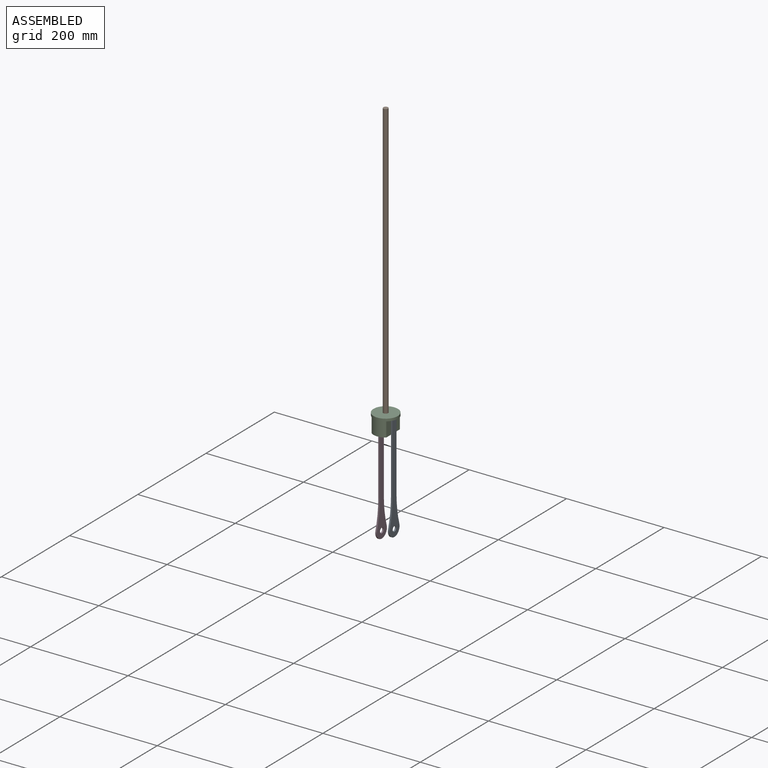
[diagram: assembled view]
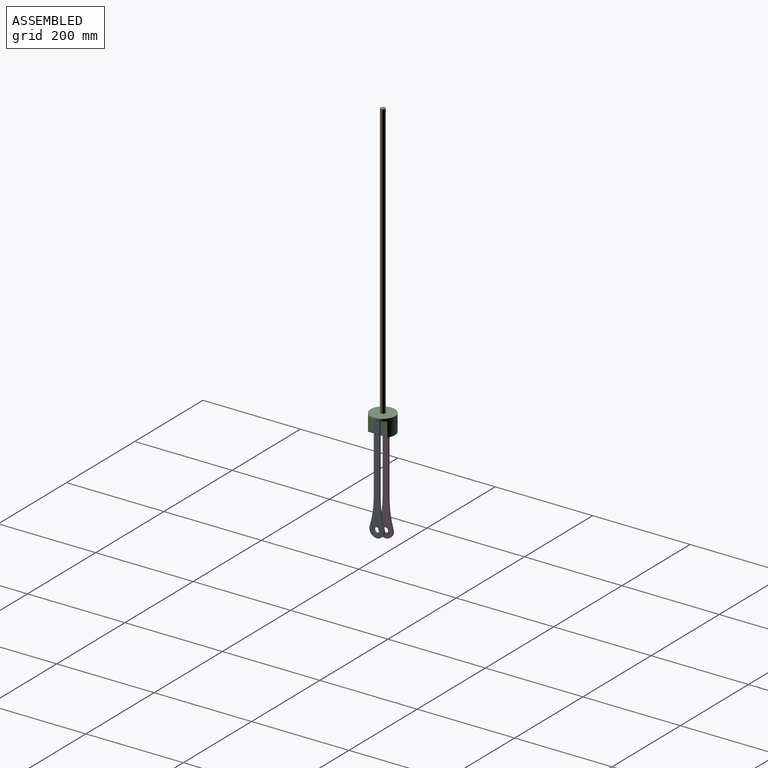
[diagram: assembled view, second angle]
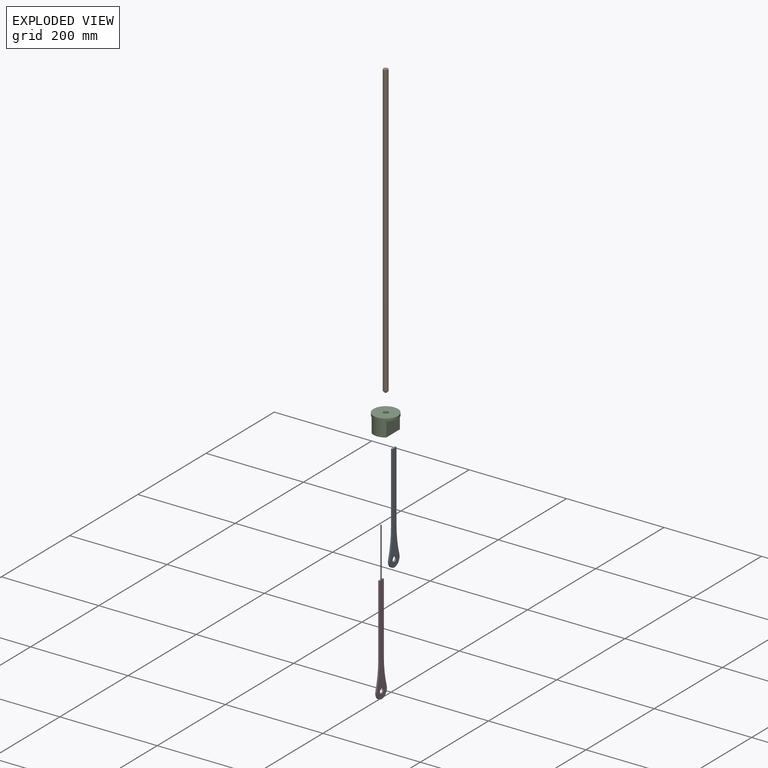
[diagram: exploded view]
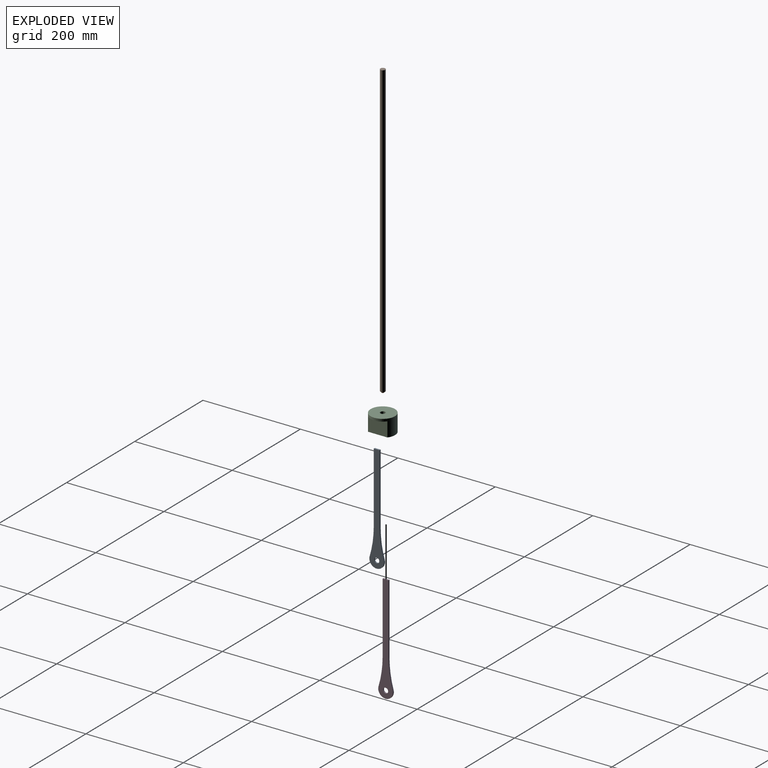
[diagram: exploded view, second angle]
ASSEMBLY  parts=4 mates=6
PART A: 9 faces, bbox 3x30x221.3 mm
  f0: plane 12x3mm, normal (0,0,1), area 36mm2, adj f1,f6,f7,f8
  f1: plane 144.7x3mm, normal (0,-1,0), area 434.1mm2, adj f0,f2,f7,f8
  f2: cylinder r=200mm len=57.26mm, axis (-1,0,0), area 174.2mm2, adj f1,f3,f7,f8
  f3: cylinder r=15mm len=30mm, axis (-1,0,0), area 167.5mm2, adj f2,f4,f7,f8
  f4: cylinder r=200mm len=57.26mm, axis (-1,0,0), area 174.2mm2, adj f3,f6,f7,f8
  f5: cylinder r=5.25mm len=10.5mm, axis (-1,0,0), area 99mm2, adj f7,f8
  f6: plane 144.7x3mm, normal (0,1,0), area 434.1mm2, adj f0,f4,f7,f8
  f7: plane 221.25x30mm, normal (1,0,0), area 3134.3mm2, adj f0,f1,f2,f3,f4,f5,f6
  f8: plane 221.25x30mm, normal (-1,0,0), area 3134.3mm2, adj f0,f1,f2,f3,f4,f5,f6
PART B: 4 faces, bbox 10x10x600 mm
  f0: cylinder r=5mm len=597mm, axis (0,0,-1), area 18755.3mm2, adj f1,f3
  f1: plane 10x10mm, normal (0,0,1), area 78.5mm2, adj f0
  f2: plane 4x4mm, normal (0,0,-1), area 12.6mm2, adj f3
  f3: cone r=5mm half-angle=45deg, axis (0,0,1), area 93.3mm2, adj f0,f2
PART C: 8 faces, bbox 50x50x35 mm
  f0: plane 50x30mm, normal (0,0,-1), area 1325.8mm2, adj f1,f2,f4,f6
  f1: cylinder r=5mm len=35mm, axis (0,0,-1), area 1099.6mm2, adj f0,f3
  f2: cylinder r=25mm len=50mm, axis (0,0,-1), area 2715.9mm2, adj f0,f3,f4,f5,f6,f7
  f3: plane 50x50mm, normal (0,0,1), area 1885mm2, adj f1,f2
  f4: plane 40x30mm, normal (1,0,0), area 1200mm2, adj f0,f2,f5
  f5: plane 40x10mm, normal (0,0,-1), area 279.6mm2, adj f2,f4
  f6: plane 40x30mm, normal (-1,0,0), area 1200mm2, adj f0,f2,f7
  f7: plane 40x10mm, normal (0,0,-1), area 279.6mm2, adj f2,f6
PART D: same geometry as A
PLACE A t=(40.73,-52.52,-209.12)mm
PLACE B rot(axis=(0,0,-1),0deg) t=(25.73,-52.52,-129.12)mm
PLACE C t=(25.73,-52.52,-129.12)mm fixed
PLACE D t=(14.73,-52.52,-219.12)mm fixed
MATE cylindrical C.f1 <-> B.f0  axis (0,0,-1) through (25.73,-52.52,-129.12)mm
MATE planar C.f5 <-> A.f0  axis (0,0,-1) through (44.81,-52.52,-99.12)mm
MATE planar B.f0 <-> C.f0  axis (0,0,-1) through (25.73,-52.52,-129.12)mm
MATE planar C.f4 <-> A.f8  axis (1,0,0) through (40.73,-52.52,-114.12)mm
MATE planar D.f0 <-> C.f7  axis (0,0,1) through (16.23,-52.52,-109.12)mm
MATE planar D.f7 <-> C.f6  axis (1,0,0) through (17.73,-52.52,-232.73)mm
